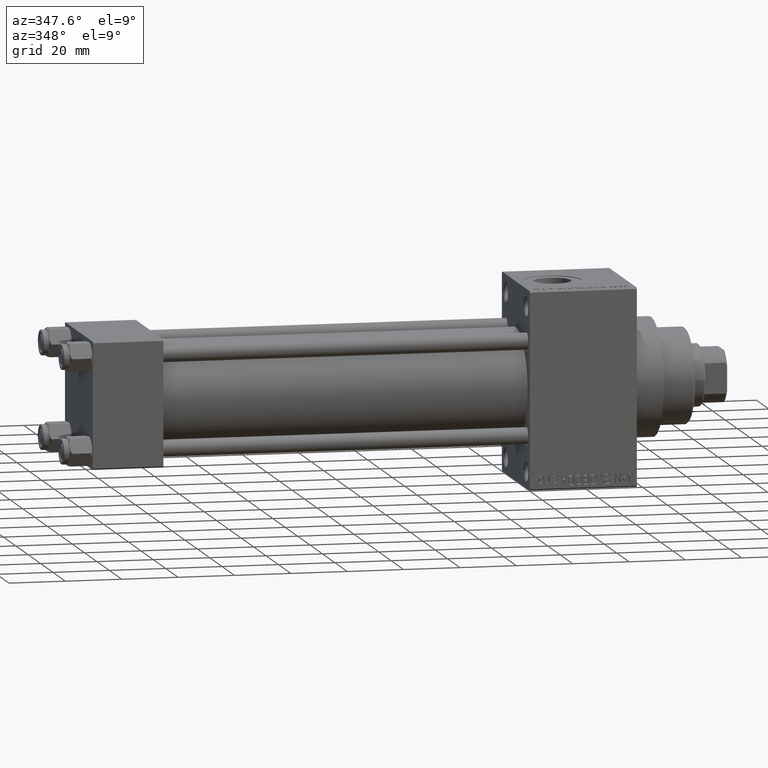
[diagram: clean part render]
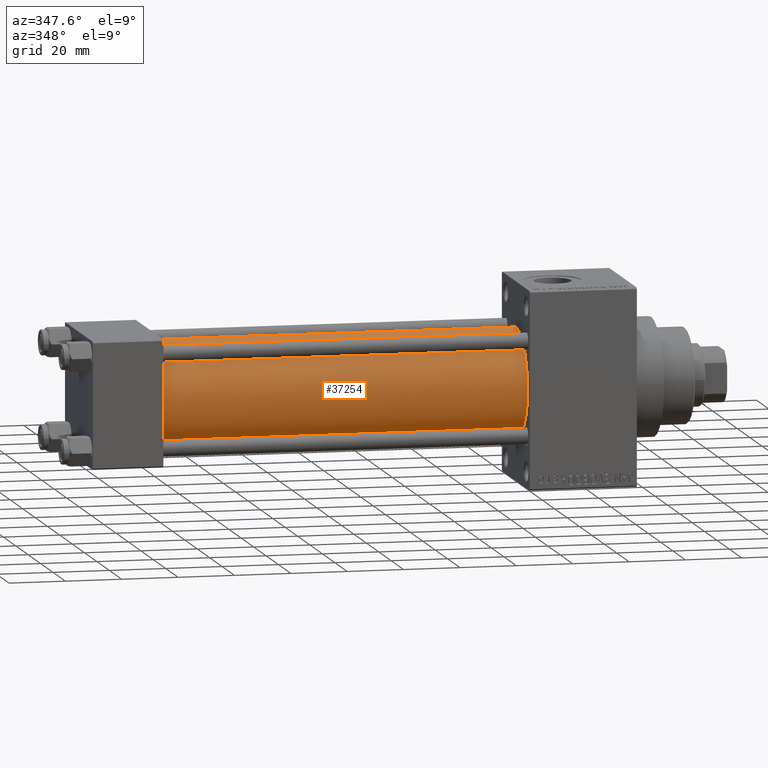
[diagram: same view with one face highlighted and labeled with its STEP entity id]
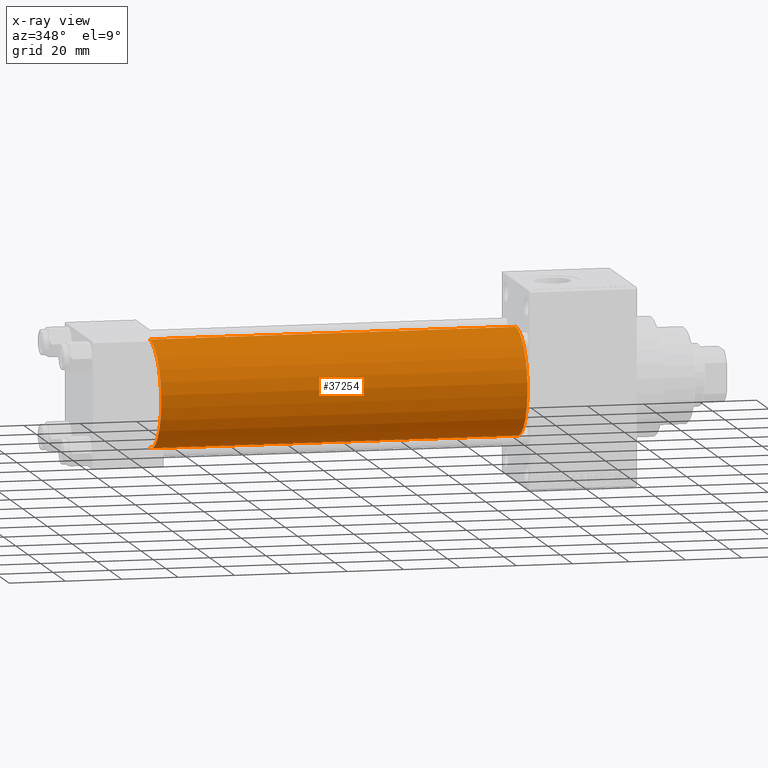
[diagram: x-ray of the same camera — body ghosted, the highlighted face saturated]
A machine part, auxiliary view. The second image highlights one B-rep face of the part: STEP entity #37254.
The next image is the same camera in x-ray: the body ghosted, the highlighted face saturated — about 0% of this face is hidden behind the body in this view.
In plain terms, the highlighted cylindrical surface (partial cylindrical patch) has radius 19 mm, axis along (-1, -0, -0).
Its self-contained STEP definition (entity closure, byte-faithful):
#662 = CARTESIAN_POINT ( 'NONE',  ( 24.99999999999999289, -2.752562955852396712E-16, -19.00000000000000000 ) ) ;
#1894 = DIRECTION ( 'NONE',  ( 0.000000000000000000, 0.000000000000000000, -1.000000000000000000 ) ) ;
#4196 = VERTEX_POINT ( 'NONE', #662 ) ;
#9324 = DIRECTION ( 'NONE',  ( 1.000000000000000000, -0.000000000000000000, 0.000000000000000000 ) ) ;
#9577 = DIRECTION ( 'NONE',  ( -1.000000000000000000, -0.000000000000000000, -0.000000000000000000 ) ) ;
#9586 = DIRECTION ( 'NONE',  ( -1.000000000000000000, -0.000000000000000000, -0.000000000000000000 ) ) ;
#13730 = EDGE_CURVE ( 'NONE', #35349, #4196, #42364, .T. ) ;
#15337 = VECTOR ( 'NONE', #25209, 1000.000000000000000 ) ;
#15459 = ORIENTED_EDGE ( 'NONE', *, *, #36360, .F. ) ;
#16924 = EDGE_LOOP ( 'NONE', ( #15459, #20578, #25161, #33130 ) ) ;
#17214 = DIRECTION ( 'NONE',  ( 0.000000000000000000, 0.000000000000000000, 1.000000000000000000 ) ) ;
#19936 = AXIS2_PLACEMENT_3D ( 'NONE', #24702, #43866, #1894 ) ;
#20578 = ORIENTED_EDGE ( 'NONE', *, *, #30000, .F. ) ;
#20936 = AXIS2_PLACEMENT_3D ( 'NONE', #39775, #9586, #17214 ) ;
#24245 = LINE ( 'NONE', #28148, #15337 ) ;
#24524 = DIRECTION ( 'NONE',  ( 0.000000000000000000, 0.000000000000000000, 1.000000000000000000 ) ) ;
#24601 = CIRCLE ( 'NONE', #19936, 19.00000000000000000 ) ;
#24702 = CARTESIAN_POINT ( 'NONE',  ( 155.0000000000000000, -2.602085213965210642E-15, 0.000000000000000000 ) ) ;
#25161 = ORIENTED_EDGE ( 'NONE', *, *, #33941, .T. ) ;
#25209 = DIRECTION ( 'NONE',  ( -1.000000000000000000, -0.000000000000000000, -0.000000000000000000 ) ) ;
#27504 = LINE ( 'NONE', #46666, #42876 ) ;
#28148 = CARTESIAN_POINT ( 'NONE',  ( 155.0000000000000000, -2.602085213965210642E-15, 19.00000000000000000 ) ) ;
#30000 = EDGE_CURVE ( 'NONE', #39399, #32093, #24601, .T. ) ;
#32093 = VERTEX_POINT ( 'NONE', #45192 ) ;
#33130 = ORIENTED_EDGE ( 'NONE', *, *, #13730, .T. ) ;
#33941 = EDGE_CURVE ( 'NONE', #39399, #35349, #24245, .T. ) ;
#35349 = VERTEX_POINT ( 'NONE', #36922 ) ;
#35795 = CARTESIAN_POINT ( 'NONE',  ( 24.99999999999999289, -2.602085213965210642E-15, 0.000000000000000000 ) ) ;
#36360 = EDGE_CURVE ( 'NONE', #32093, #4196, #27504, .T. ) ;
#36922 = CARTESIAN_POINT ( 'NONE',  ( 24.99999999999999289, -2.602085213965210642E-15, 19.00000000000000000 ) ) ;
#37254 = ADVANCED_FACE ( 'NONE', ( #43231 ), #46205, .T. ) ;
#39399 = VERTEX_POINT ( 'NONE', #45581 ) ;
#39775 = CARTESIAN_POINT ( 'NONE',  ( 155.0000000000000000, -2.602085213965210642E-15, 0.000000000000000000 ) ) ;
#42364 = CIRCLE ( 'NONE', #43916, 19.00000000000000000 ) ;
#42876 = VECTOR ( 'NONE', #9577, 1000.000000000000000 ) ;
#43231 = FACE_OUTER_BOUND ( 'NONE', #16924, .T. ) ;
#43866 = DIRECTION ( 'NONE',  ( 1.000000000000000000, 0.000000000000000000, 0.000000000000000000 ) ) ;
#43916 = AXIS2_PLACEMENT_3D ( 'NONE', #35795, #9324, #24524 ) ;
#45192 = CARTESIAN_POINT ( 'NONE',  ( 155.0000000000000000, -2.752562955852396712E-16, -19.00000000000000000 ) ) ;
#45581 = CARTESIAN_POINT ( 'NONE',  ( 155.0000000000000000, -2.602085213965210642E-15, 19.00000000000000000 ) ) ;
#46205 = CYLINDRICAL_SURFACE ( 'NONE', #20936, 19.00000000000000000 ) ;
#46666 = CARTESIAN_POINT ( 'NONE',  ( 155.0000000000000000, -2.752562955852396712E-16, -19.00000000000000000 ) ) ;